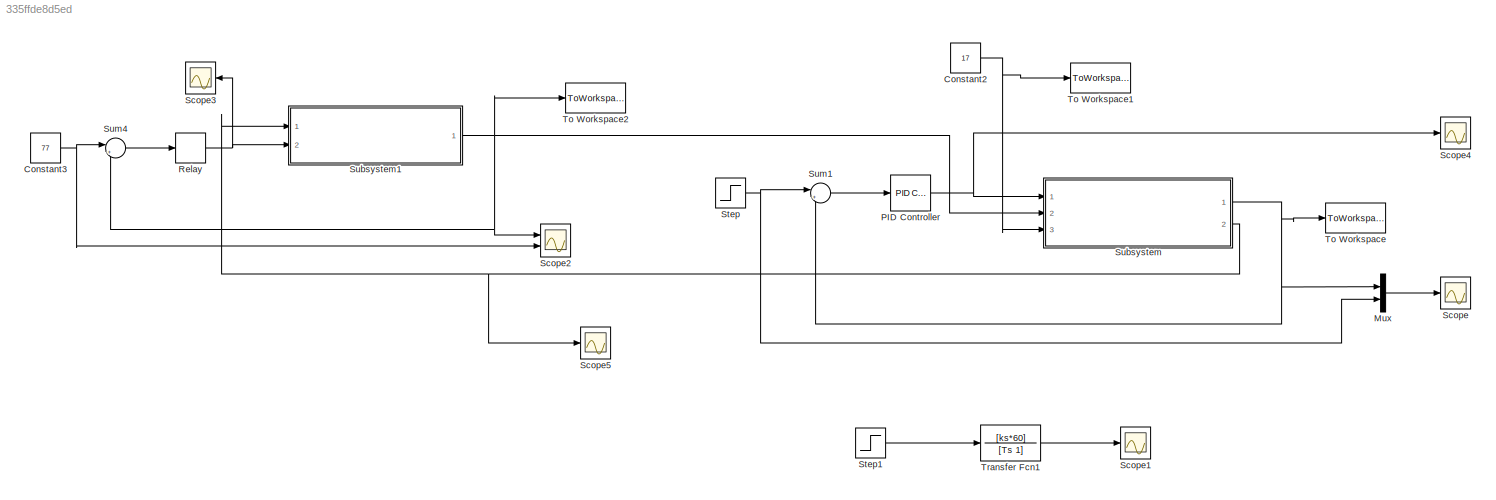
MODEL slx_335ffde8d5ed
KIND model
CONFIG AbsTol = auto
CONFIG EnableMultiTasking = off
CONFIG FixedStep = auto
CONFIG MaxStep = auto
CONFIG MinStep = auto
CONFIG RelTol = 1e-3
CONFIG SampleTimeConstraint = Unconstrained
CONFIG Solver = VariableStepAuto
CONFIG SolverName = VariableStepAuto
CONFIG StartTime = 0.0
CONFIG StopFcn = time=T_Raum.time;\ntime=time/24+737902;\ntime=datetime(time,'ConvertFrom','datenum');\nTT=timetable(time,T_Raum.data,T_tank.data,'VariableNames',{'T_room','T_tank'});\nTT=timetable2table(TT);\nwritetable(TT,'test01.csv');\nTT2=timetable(time,T_aussen.data,'VariableNames',{'T_outside'});\nTT2=timetable2table(TT2);\nwritetable(TT2,'test02.csv');
CONFIG StopTime = 600
WORKSPACE source: MAT-file member
WORKSPACE I_Heizelement = 1800000
BLOCK [Constant] Constant2
  Value = 17
BLOCK [Constant] Constant3
  Value = 77
BLOCK [Mux] Mux
  DisplayOption = bar
  Inputs = 2
  Ports = [2, 1]
BLOCK [Reference] PID Controller  REF=simulink/Continuous/PID Controller
  Ports = [1, 1]
  SourceBlock = simulink/Continuous/PID Controller
  SourceProductBaseCode = SL
  SourceProductName = Simulink
  SourceType = PID 1dof
BLOCK [Relay] Relay
  InputProcessing = Elements as channels (sample based)
  OffSwitchValue = -0.5
  OnSwitchValue = 0.5
BLOCK [Scope] Scope
  NumInputPorts = 1
  Ports = [1]
  ScopeSpecificationString = Simulink.scopes.TimeScopeBlockCfg('CurrentConfiguration', extmgr.ConfigurationSet(extmgr.Configuration('Core','General UI',true),extmgr.Configuration('Core','Source UI',true),extmgr.Configuration('Sources','WiredSimulink',true),extmgr.Configuration('Visuals','Time Domain',true,'SerializedDisplays',{struct('MinYLimReal','16.55243','MaxYLimReal','21.02814','YLabelReal','','MinYLimMag','16.55243','Ma...<+1419ch>
BLOCK [Scope] Scope1
  NumInputPorts = 1
  Ports = [1]
  ScopeSpecificationString = Simulink.scopes.TimeScopeBlockCfg('CurrentConfiguration', extmgr.ConfigurationSet(extmgr.Configuration('Core','General UI',true),extmgr.Configuration('Core','Source UI',true),extmgr.Configuration('Sources','WiredSimulink',true,'DataLoggingVariableName','ScopeData1'),extmgr.Configuration('Visuals','Time Domain',true,'SerializedDisplays',{struct('MinYLimReal','-7.47882','MaxYLimReal','67.30941','YLa...<+1420ch>
BLOCK [Scope] Scope2
  NumInputPorts = 2
  Ports = [2]
  ScopeSpecificationString = Simulink.scopes.TimeScopeBlockCfg('CurrentConfiguration', extmgr.ConfigurationSet(extmgr.Configuration('Core','General UI',true),extmgr.Configuration('Core','Source UI',true),extmgr.Configuration('Sources','WiredSimulink',true,'DataLoggingVariableName','ScopeData2'),extmgr.Configuration('Visuals','Time Domain',true,'SerializedDisplays',{struct('MinYLimReal','12.83403','MaxYLimReal','84.49369','YLa...<+1512ch>
BLOCK [Scope] Scope3
  NumInputPorts = 1
  Ports = [1]
  ScopeSpecificationString = Simulink.scopes.TimeScopeBlockCfg('CurrentConfiguration', extmgr.ConfigurationSet(extmgr.Configuration('Core','General UI',true),extmgr.Configuration('Core','Source UI',true),extmgr.Configuration('Sources','WiredSimulink',true,'DataLoggingVariableName','ScopeData3'),extmgr.Configuration('Visuals','Time Domain',true,'SerializedDisplays',{struct('MinYLimReal','-0.125','MaxYLimReal','1.125','YLabelRe...<+1412ch>
BLOCK [Scope] Scope4
  NumInputPorts = 1
  Ports = [1]
  ScopeSpecificationString = Simulink.scopes.TimeScopeBlockCfg('CurrentConfiguration', extmgr.ConfigurationSet(extmgr.Configuration('Core','General UI',true),extmgr.Configuration('Core','Source UI',true),extmgr.Configuration('Sources','WiredSimulink',true,'DataLoggingVariableName','ScopeData4'),extmgr.Configuration('Visuals','Time Domain',true,'SerializedDisplays',{struct('MinYLimReal','-0.08316','MaxYLimReal','0.13014','YLab...<+1417ch>
BLOCK [Scope] Scope5
  NumInputPorts = 1
  Ports = [1]
  ScopeSpecificationString = Simulink.scopes.TimeScopeBlockCfg('CurrentConfiguration', extmgr.ConfigurationSet(extmgr.Configuration('Core','General UI',true),extmgr.Configuration('Core','Source UI',true),extmgr.Configuration('Sources','WiredSimulink',true,'DataLoggingVariableName','ScopeData1'),extmgr.Configuration('Visuals','Time Domain',true,'SerializedDisplays',{struct('MinYLimReal','-0.26866','MaxYLimReal','0.09911','YLab...<+1414ch>
BLOCK [Step] Step
  After = 20
  Before = 20
  SampleTime = 0
  Time = 0
BLOCK [Step] Step1
  SampleTime = 0
  Time = 0
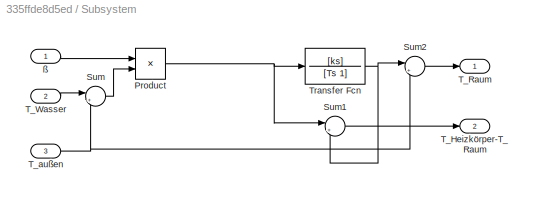
BLOCK [SubSystem] Subsystem
  Ports = [3, 2]
  RequestExecContextInheritance = off
  Variant = off
BLOCK [Product] Subsystem/Product
  InputSameDT = off
  OutDataTypeStr = Inherit: Inherit via internal rule
  Ports = [2, 1]
  RndMeth = Floor
  SaturateOnIntegerOverflow = off
BLOCK [Sum] Subsystem/Sum
  IconShape = round
  InputSameDT = off
  Inputs = |+-
  OutDataTypeStr = Inherit: Inherit via internal rule
  Ports = [2, 1]
  SaturateOnIntegerOverflow = off
BLOCK [Sum] Subsystem/Sum1
  IconShape = round
  InputSameDT = off
  Inputs = |+-
  OutDataTypeStr = Inherit: Inherit via internal rule
  Ports = [2, 1]
  SaturateOnIntegerOverflow = off
BLOCK [Sum] Subsystem/Sum2
  IconShape = round
  InputSameDT = off
  Inputs = |++
  OutDataTypeStr = Inherit: Inherit via internal rule
  Ports = [2, 1]
  SaturateOnIntegerOverflow = off
BLOCK [Outport] Subsystem/T_Heizkörper-T_Raum
  IconDisplay = Port number
  Port = 2
BLOCK [Outport] Subsystem/T_Raum
  IconDisplay = Port number
BLOCK [Inport] Subsystem/T_Wasser
  IconDisplay = Port number
  Port = 2
BLOCK [Inport] Subsystem/T_außen
  IconDisplay = Port number
  Port = 3
BLOCK [TransferFcn] Subsystem/Transfer Fcn
  Denominator = [Ts 1]
  Numerator = [ks]
BLOCK [Inport] Subsystem/ß
  IconDisplay = Port number
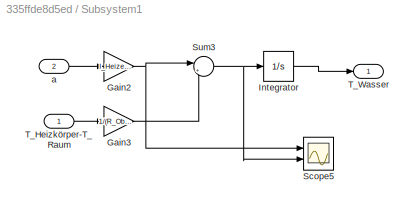
BLOCK [SubSystem] Subsystem1
  Ports = [2, 1]
  RequestExecContextInheritance = off
  Variant = off
BLOCK [Gain] Subsystem1/Gain2
  Gain = I_Heizelement/(c_Wasser*m_Kessel)
  OutDataTypeStr = Inherit: Inherit via internal rule
  ParamDataTypeStr = Inherit: Inherit via internal rule
  SaturateOnIntegerOverflow = off
BLOCK [Gain] Subsystem1/Gain3
  Gain = 1/(R_Oberflaeche*c_Wasser*m_Kessel)
  OutDataTypeStr = Inherit: Inherit via internal rule
  ParamDataTypeStr = Inherit: Inherit via internal rule
  SaturateOnIntegerOverflow = off
BLOCK [Integrator] Subsystem1/Integrator
  InitialCondition = 20
  Ports = [1, 1]
BLOCK [Scope] Subsystem1/Scope5
  NumInputPorts = 2
  Ports = [2]
  ScopeSpecificationString = Simulink.scopes.TimeScopeBlockCfg('CurrentConfiguration', extmgr.ConfigurationSet(extmgr.Configuration('Core','General UI',true),extmgr.Configuration('Core','Source UI',true),extmgr.Configuration('Sources','WiredSimulink',true,'DataLoggingVariableName','ScopeData5'),extmgr.Configuration('Visuals','Time Domain',true,'SerializedDisplays',{struct('MinYLimReal','-17.09849','MaxYLimReal','8.92567','YLa...<+1452ch>
BLOCK [Sum] Subsystem1/Sum3
  IconShape = round
  InputSameDT = off
  Inputs = |+-
  OutDataTypeStr = Inherit: Inherit via internal rule
  Ports = [2, 1]
  SaturateOnIntegerOverflow = off
BLOCK [Inport] Subsystem1/T_Heizkörper-T_Raum
  IconDisplay = Port number
BLOCK [Outport] Subsystem1/T_Wasser
  IconDisplay = Port number
BLOCK [Inport] Subsystem1/a
  IconDisplay = Port number
  Port = 2
BLOCK [Sum] Sum1
  IconShape = round
  InputSameDT = off
  Inputs = |+-
  OutDataTypeStr = Inherit: Inherit via internal rule
  Ports = [2, 1]
  SaturateOnIntegerOverflow = off
BLOCK [Sum] Sum4
  IconShape = round
  InputSameDT = off
  Inputs = |+-
  OutDataTypeStr = Inherit: Inherit via internal rule
  Ports = [2, 1]
  SaturateOnIntegerOverflow = off
BLOCK [ToWorkspace] To Workspace
  MaxDataPoints = inf
  Ports = [1]
  SampleTime = -1
  Save2DSignal = 2-D array (concatenate along first dimension)
  SaveFormat = Timeseries
  VariableName = T_Raum
BLOCK [ToWorkspace] To Workspace1
  MaxDataPoints = inf
  Ports = [1]
  SampleTime = -1
  Save2DSignal = 2-D array (concatenate along first dimension)
  SaveFormat = Timeseries
  VariableName = T_aussen
BLOCK [ToWorkspace] To Workspace2
  MaxDataPoints = inf
  Ports = [1]
  SampleTime = -1
  Save2DSignal = 2-D array (concatenate along first dimension)
  SaveFormat = Timeseries
  VariableName = T_tank
BLOCK [TransferFcn] Transfer Fcn1
  Denominator = [Ts 1]
  Numerator = [ks*60]
NET Constant2:1 -> Subsystem:3, To Workspace1:1
NET Constant3:1 -> Scope2:2, Sum4:1
LINE Mux:1 -> Scope:1
NET PID Controller:1 -> Scope4:1, Subsystem:1
NET Relay:1 -> Scope3:1, Subsystem1:2
LINE Step1:1 -> Transfer Fcn1:1
NET Step:1 -> Mux:2, Sum1:1
NET Subsystem/Product:1 -> Subsystem/Sum1:1, Subsystem/Transfer Fcn:1
LINE Subsystem/Sum1:1 -> Subsystem/T_Heizkörper-T_Raum:1
LINE Subsystem/Sum2:1 -> Subsystem/T_Raum:1
LINE Subsystem/Sum:1 -> Subsystem/Product:2
LINE Subsystem/T_Wasser:1 -> Subsystem/Sum:1
NET Subsystem/T_außen:1 -> Subsystem/Sum2:2, Subsystem/Sum:2
NET Subsystem/Transfer Fcn:1 -> Subsystem/Sum1:2, Subsystem/Sum2:1
LINE Subsystem/ß:1 -> Subsystem/Product:1
NET Subsystem1/Gain2:1 -> Subsystem1/Scope5:1, Subsystem1/Sum3:1
LINE Subsystem1/Gain3:1 -> Subsystem1/Sum3:2
LINE Subsystem1/Integrator:1 -> Subsystem1/T_Wasser:1
NET Subsystem1/Sum3:1 -> Subsystem1/Integrator:1, Subsystem1/Scope5:2
LINE Subsystem1/T_Heizkörper-T_Raum:1 -> Subsystem1/Gain3:1
LINE Subsystem1/a:1 -> Subsystem1/Gain2:1
NET Subsystem1:1 -> Scope2:1, Subsystem:2, Sum4:2, To Workspace2:1
NET Subsystem:1 -> Mux:1, Sum1:2, To Workspace:1
NET Subsystem:2 -> Scope5:1, Subsystem1:1
LINE Sum1:1 -> PID Controller:1
LINE Sum4:1 -> Relay:1
LINE Transfer Fcn1:1 -> Scope1:1
note: NET lines group one-source signal fan-out (src -> all destinations, sorted); 1:1 wires keep LINE
